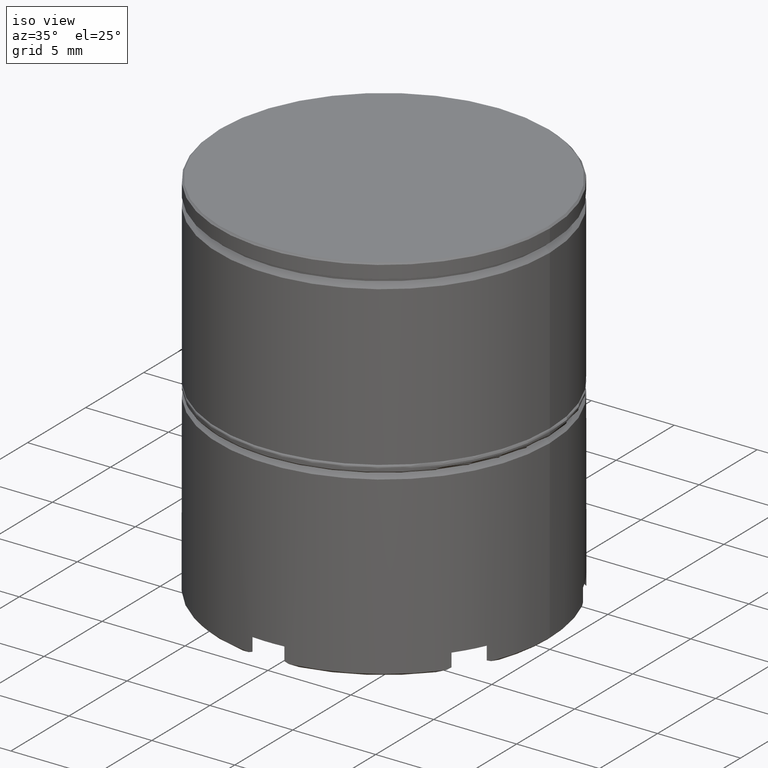
[diagram: clean part render]
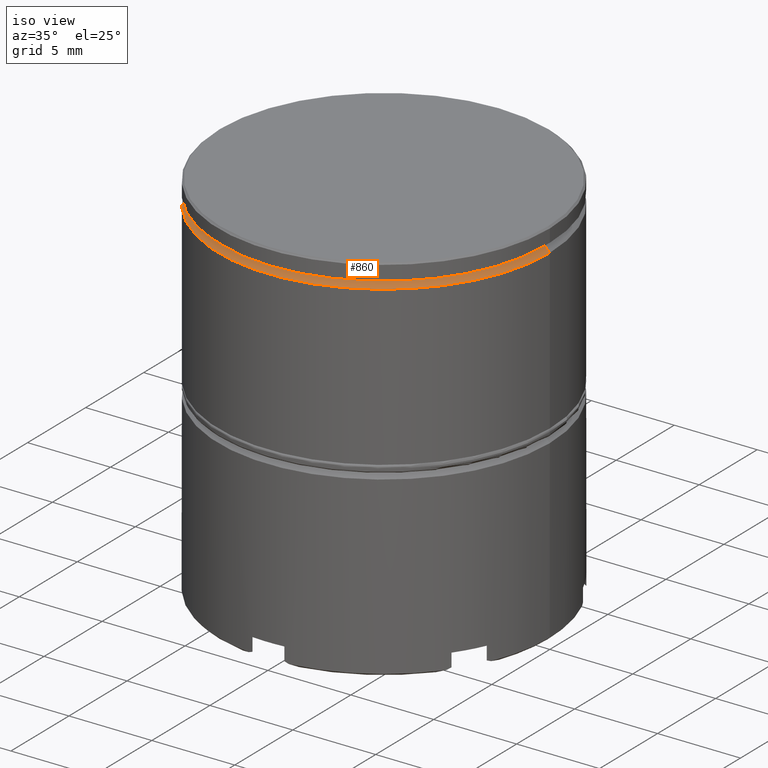
[diagram: same view with one face highlighted and labeled with its STEP entity id]
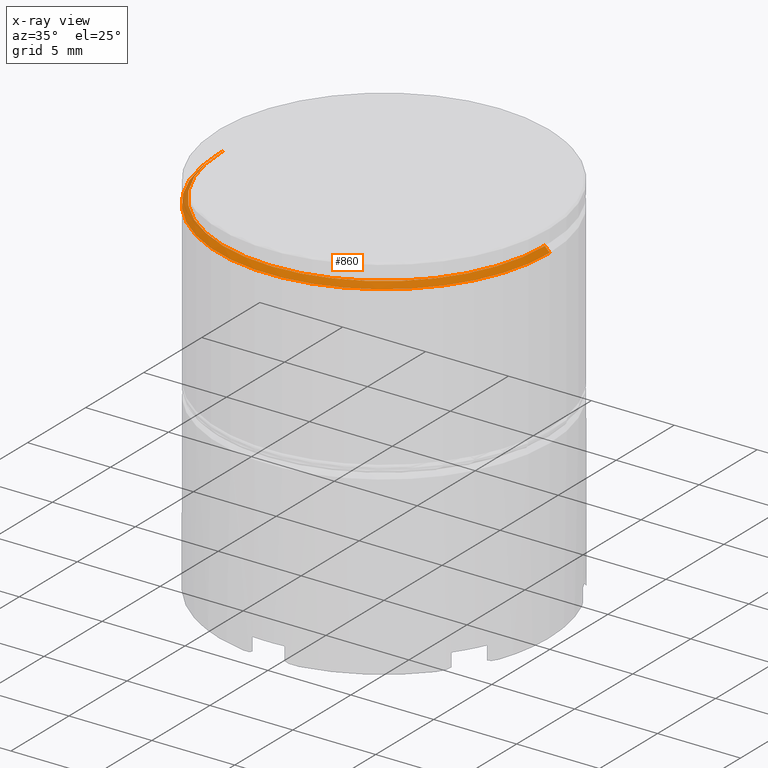
[diagram: x-ray of the same camera — body ghosted, the highlighted face saturated]
A machine part, iso view. The second image highlights one B-rep face of the part: STEP entity #860.
The next image is the same camera in x-ray: the body ghosted, the highlighted face saturated — about 0% of this face is hidden behind the body in this view.
In plain terms, the highlighted conical surface has half-angle 45 deg.
Its self-contained STEP definition (entity closure, byte-faithful):
#112 = CONICAL_SURFACE ( 'NONE', #1450, 9.700000000000001066, 0.7853981633974338461 ) ;
#139 = VECTOR ( 'NONE', #1112, 1000.000000000000000 ) ;
#162 = DIRECTION ( 'NONE',  ( -1.000000000000000000, 0.000000000000000000, 0.000000000000000000 ) ) ;
#172 = LINE ( 'NONE', #1381, #790 ) ;
#273 = FACE_OUTER_BOUND ( 'NONE', #966, .T. ) ;
#301 = VERTEX_POINT ( 'NONE', #913 ) ;
#343 = LINE ( 'NONE', #855, #139 ) ;
#362 = AXIS2_PLACEMENT_3D ( 'NONE', #901, #1008, #1409 ) ;
#404 = ORIENTED_EDGE ( 'NONE', *, *, #1613, .F. ) ;
#443 = ORIENTED_EDGE ( 'NONE', *, *, #1194, .T. ) ;
#484 = VERTEX_POINT ( 'NONE', #862 ) ;
#677 = ORIENTED_EDGE ( 'NONE', *, *, #1524, .F. ) ;
#689 = CIRCLE ( 'NONE', #1571, 10.00000000000000000 ) ;
#777 = CARTESIAN_POINT ( 'NONE',  ( 0.000000000000000000, 0.000000000000000000, -1.125000000000000222 ) ) ;
#790 = VECTOR ( 'NONE', #912, 1000.000000000000000 ) ;
#818 = DIRECTION ( 'NONE',  ( 0.000000000000000000, 0.000000000000000000, -1.000000000000000000 ) ) ;
#833 = ORIENTED_EDGE ( 'NONE', *, *, #1632, .F. ) ;
#855 = CARTESIAN_POINT ( 'NONE',  ( -9.700000000000001066, 0.000000000000000000, -1.125000000000000222 ) ) ;
#860 = ADVANCED_FACE ( 'NONE', ( #273 ), #112, .T. ) ;
#862 = CARTESIAN_POINT ( 'NONE',  ( -9.700000000000001066, 1.187907395172932594E-15, -1.125000000000000222 ) ) ;
#898 = VERTEX_POINT ( 'NONE', #939 ) ;
#901 = CARTESIAN_POINT ( 'NONE',  ( 0.000000000000000000, 0.000000000000000000, -1.125000000000000222 ) ) ;
#912 = DIRECTION ( 'NONE',  ( 0.7071067811865373587, 8.659560562354808366E-17, -0.7071067811865577868 ) ) ;
#913 = CARTESIAN_POINT ( 'NONE',  ( -10.00000000000000000, 1.224646799147353256E-15, -1.425000000000008704 ) ) ;
#939 = CARTESIAN_POINT ( 'NONE',  ( 9.700000000000001066, 0.000000000000000000, -1.125000000000000222 ) ) ;
#966 = EDGE_LOOP ( 'NONE', ( #833, #404, #443, #677 ) ) ;
#1007 = CARTESIAN_POINT ( 'NONE',  ( 10.00000000000000000, 0.000000000000000000, -1.425000000000008704 ) ) ;
#1008 = DIRECTION ( 'NONE',  ( -0.000000000000000000, -0.000000000000000000, 1.000000000000000000 ) ) ;
#1112 = DIRECTION ( 'NONE',  ( -0.7071067811865373587, 0.000000000000000000, -0.7071067811865577868 ) ) ;
#1165 = DIRECTION ( 'NONE',  ( 1.000000000000000000, 0.000000000000000000, 0.000000000000000000 ) ) ;
#1194 = EDGE_CURVE ( 'NONE', #484, #301, #343, .T. ) ;
#1280 = DIRECTION ( 'NONE',  ( 0.000000000000000000, 0.000000000000000000, -1.000000000000000000 ) ) ;
#1300 = CARTESIAN_POINT ( 'NONE',  ( 0.000000000000000000, 0.000000000000000000, -1.425000000000008704 ) ) ;
#1381 = CARTESIAN_POINT ( 'NONE',  ( 9.700000000000001066, 1.187907395172932594E-15, -1.125000000000000222 ) ) ;
#1409 = DIRECTION ( 'NONE',  ( 1.000000000000000000, 0.000000000000000000, 0.000000000000000000 ) ) ;
#1449 = VERTEX_POINT ( 'NONE', #1007 ) ;
#1450 = AXIS2_PLACEMENT_3D ( 'NONE', #777, #1280, #162 ) ;
#1478 = CIRCLE ( 'NONE', #362, 9.700000000000001066 ) ;
#1524 = EDGE_CURVE ( 'NONE', #1449, #301, #689, .T. ) ;
#1571 = AXIS2_PLACEMENT_3D ( 'NONE', #1300, #818, #1165 ) ;
#1613 = EDGE_CURVE ( 'NONE', #484, #898, #1478, .T. ) ;
#1632 = EDGE_CURVE ( 'NONE', #898, #1449, #172, .T. ) ;